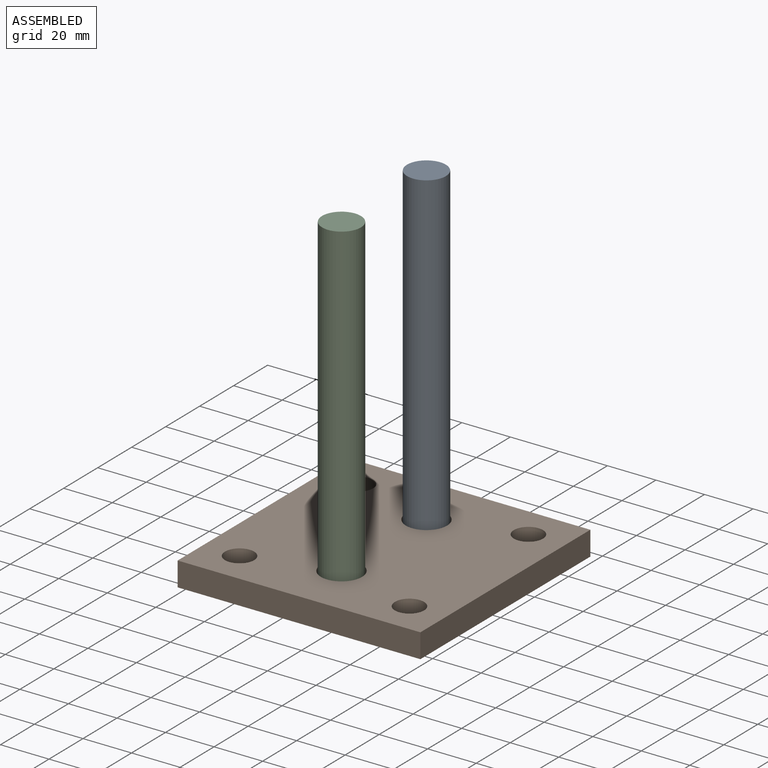
[diagram: assembled view]
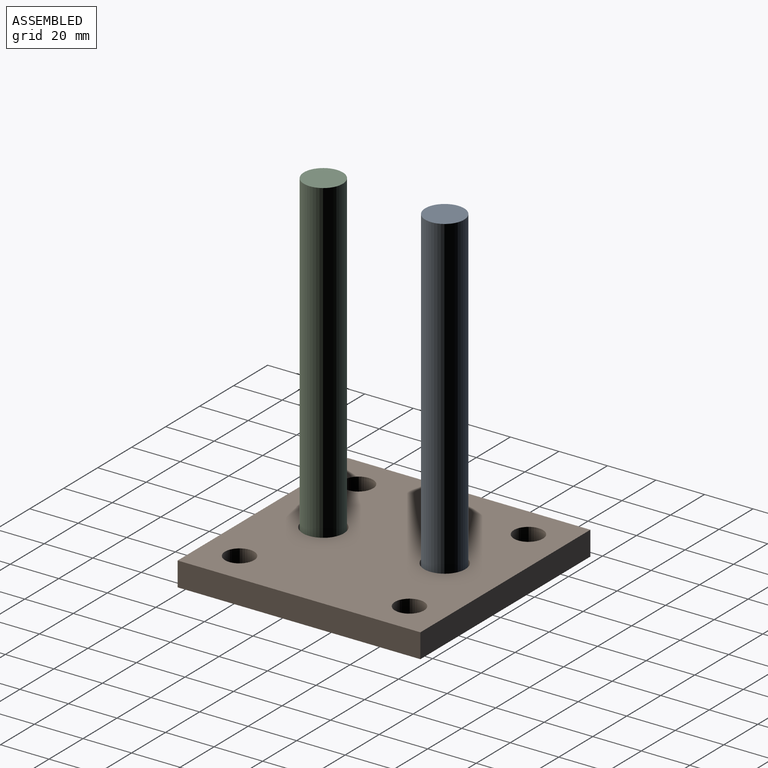
[diagram: assembled view, second angle]
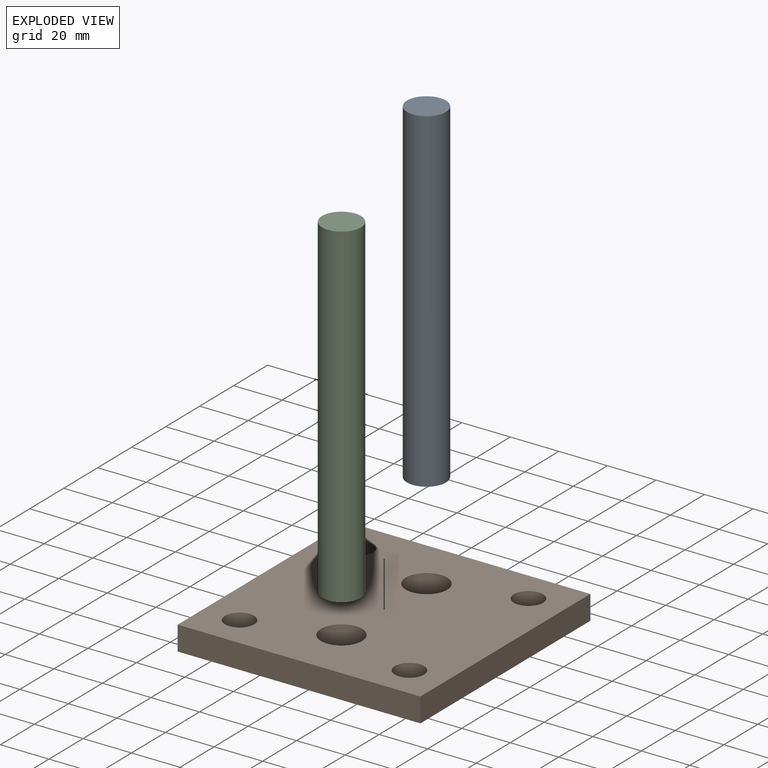
[diagram: exploded view]
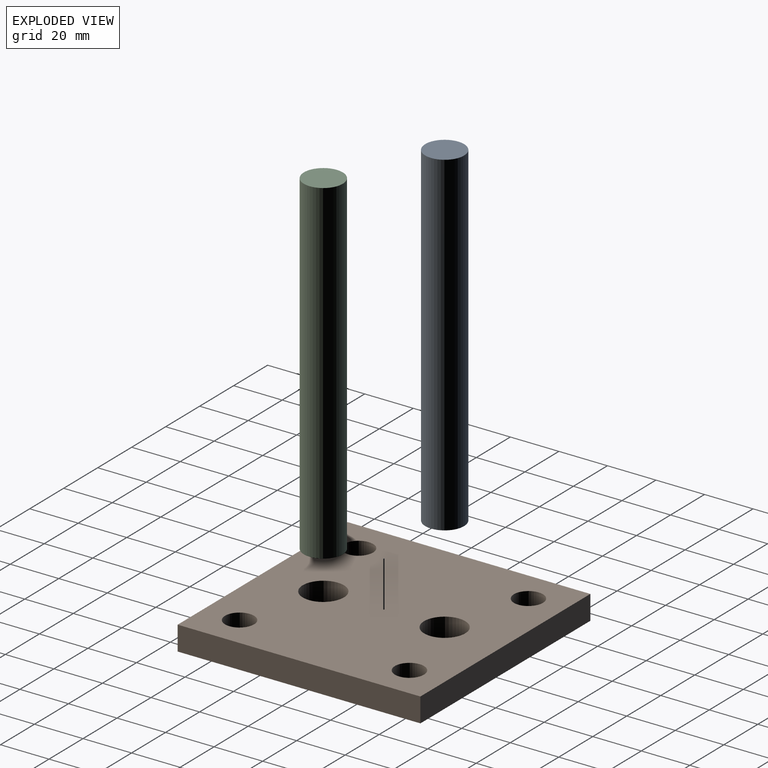
[diagram: exploded view, second angle]
ASSEMBLY  parts=3 mates=2
PART A: 3 faces, bbox 16x16x138 mm
  f0: cylinder r=8mm len=138mm, axis (0,0,-1), area 6936.6mm2, adj f1,f2
  f1: plane 16x16mm, normal (0,0,1), area 201.1mm2, adj f0
  f2: plane 16x16mm, normal (0,0,-1), area 201.1mm2, adj f0
PART B: 12 faces, bbox 100x100x10 mm
  f0: plane 100x10mm, normal (-1,0,0), area 1000mm2, adj f1,f8,f10,f11
  f1: plane 100x10mm, normal (0,-1,0), area 1000mm2, adj f0,f2,f10,f11
  f2: plane 100x10mm, normal (1,0,0), area 1000mm2, adj f1,f8,f10,f11
  f3: cylinder r=8.5mm len=17mm, axis (0,0,-1), area 534.1mm2, adj f10,f11
  f4: cylinder r=6mm len=12mm, axis (0,0,-1), area 377mm2, adj f10,f11
  f5: cylinder r=6mm len=12mm, axis (0,0,-1), area 377mm2, adj f10,f11
  f6: cylinder r=6mm len=12mm, axis (0,0,-1), area 377mm2, adj f10,f11
  f7: cylinder r=6mm len=12mm, axis (0,0,-1), area 377mm2, adj f10,f11
  f8: plane 100x10mm, normal (0,1,0), area 1000mm2, adj f0,f2,f10,f11
  f9: cylinder r=8.5mm len=17mm, axis (0,0,-1), area 534.1mm2, adj f10,f11
  f10: plane 100x100mm, normal (0,0,1), area 9093.7mm2, adj f0,f1,f2,f3,f4,f5,f6,f7
  f11: plane 100x100mm, normal (0,0,-1), area 9093.7mm2, adj f0,f1,f2,f3,f4,f5,f6,f7
PART C: 3 faces, bbox 16x16x138 mm
  f0: cylinder r=8mm len=138mm, axis (0,0,-1), area 6936.6mm2, adj f1,f2
  f1: plane 16x16mm, normal (0,0,1), area 201.1mm2, adj f0
  f2: plane 16x16mm, normal (0,0,-1), area 201.1mm2, adj f0
PLACE A at identity
PLACE B at identity
PLACE C at identity
MATE cylindrical A.f0 <-> B.f3  axis (0,0,-1) through (0,25,2)mm
MATE cylindrical C.f0 <-> B.f9  axis (0,0,-1) through (0,-25,2)mm
